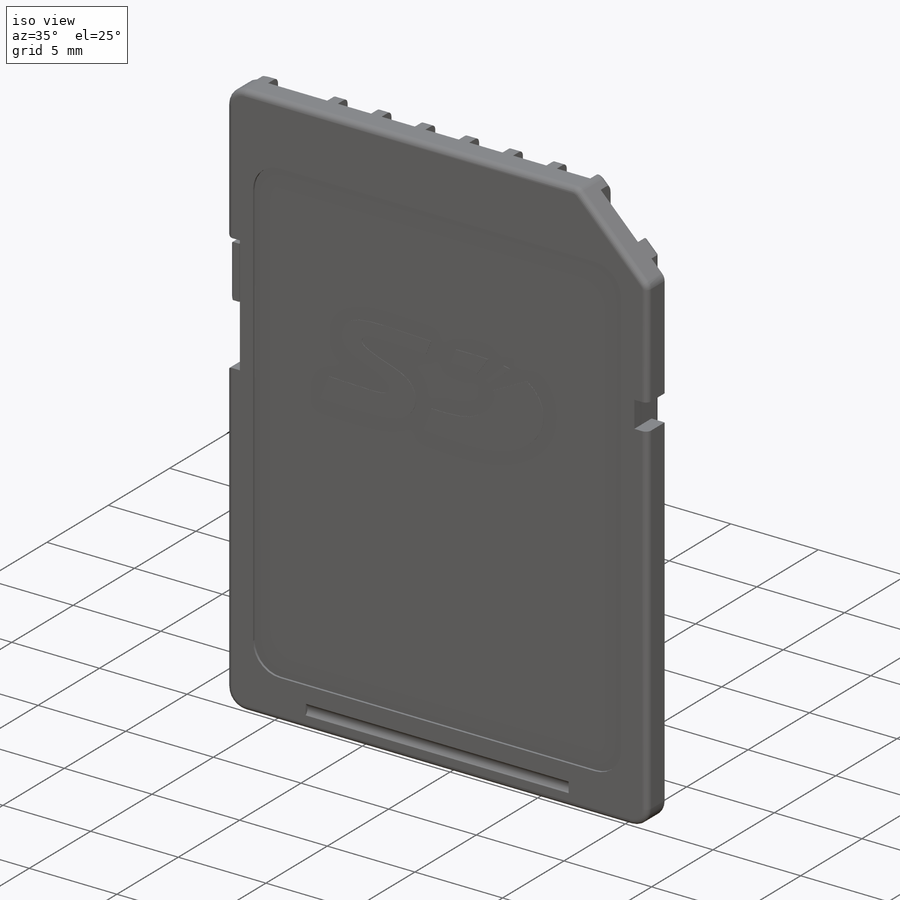
[diagram: iso view]
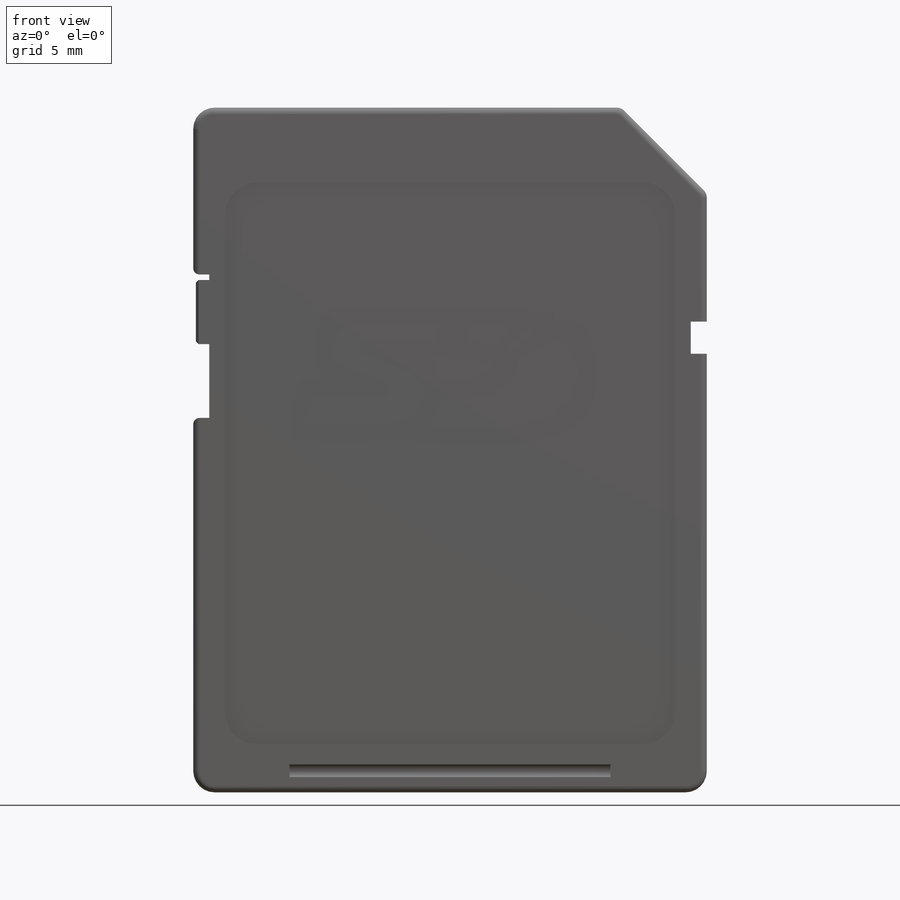
[diagram: front view]
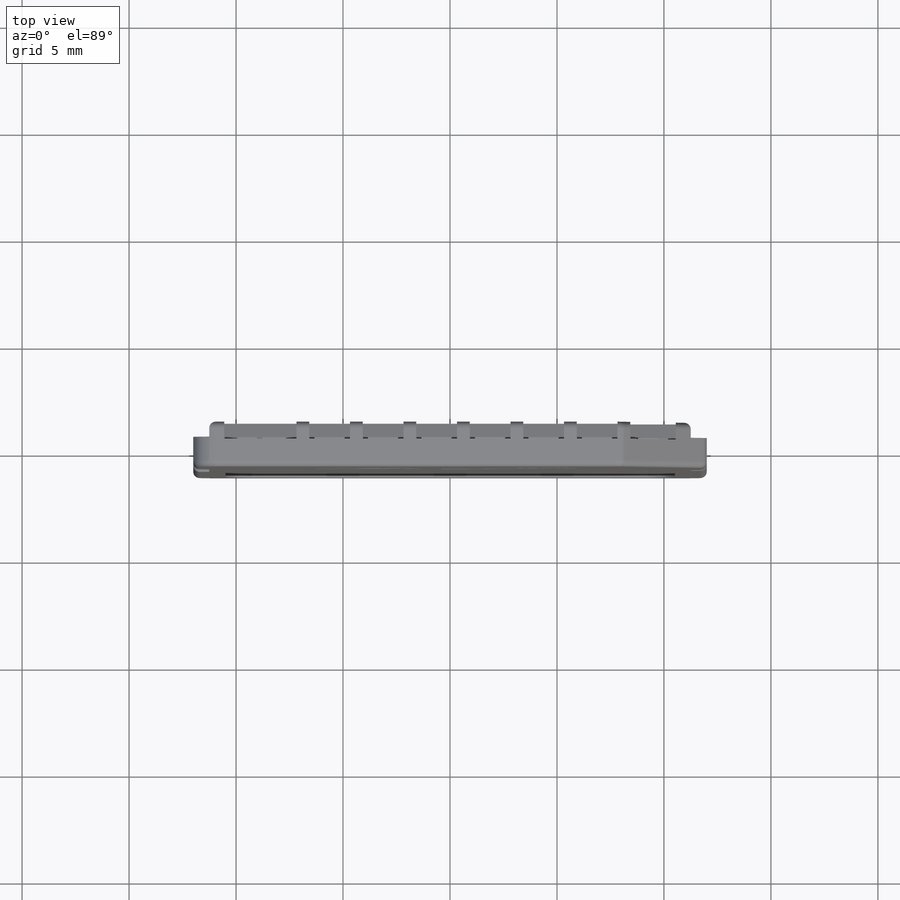
[diagram: top view]
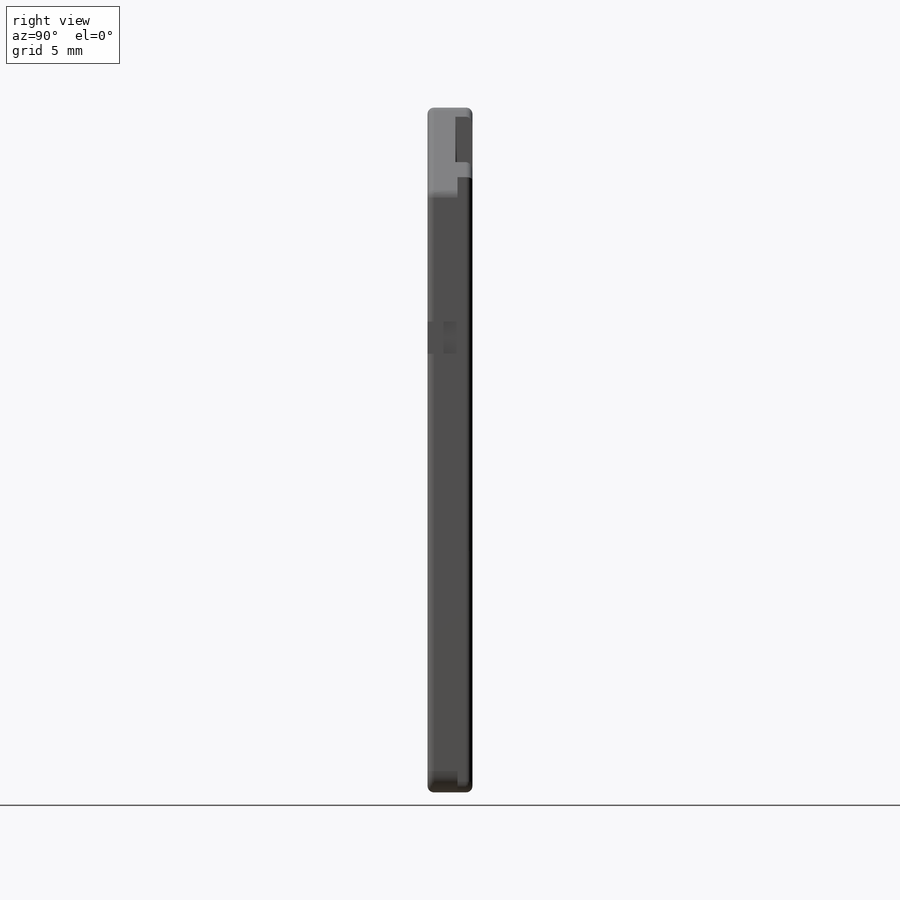
[diagram: right view]
SOLIDWORKS PART (.sldprt)
format: sldprt  version: not decoded by parser v0  size: 607,232 bytes
history: native  units: mm
features: sketch x10, cut_extrude x6, extrude x4, fillet x4, chamfer x2, material x1, plane x1 (+12 scaffold rows collapsed)
feature tree (40):
  scaffold x12  (default folders/planes/origin — collapsed)
  material  "Material <not specified>"
  sketch  "Sketch1"  dims[D1=24.0mm D2=32.0mm]
  extrude  "Main Body"  Depth=2.1mm
  chamfer  "Index Corner"  Distance=4mm Angle=45deg
  sketch  "Sketch2"  dims[D1=1.5mm D2=0.75mm D3=10.0mm D4=6.7mm D5=0.75mm D6=7.8mm]
  cut_extrude  "Lock Tab Cutout"  [1 undecoded]
  sketch  "Sketch3"  dims[D1=22.5mm D2=1.4mm]
  cut_extrude  "Indexing Notch"  [1 undecoded]
  sketch  "Sketch4"  dims[c1.D1=5.95mm c1.D2=2.0mm c1.D3=2.5mm c1.D4=0.7mm c2.D3=0.5mm c2.D5=0.5mm c2.D6=0.7mm c2.D7=7.65mm c2.D8=8.05mm c2.D1=8.125mm c2.D2=2.5mm c3.D3=0.6mm c3.D5=0.6mm c3.D6=0.6mm c3.D8=0.6mm c3.D9=0.6mm c3.D10=0.6mm c3.D11=5.65mm c3.D12=0.6mm c3.D13=0.7mm]
  cut_extrude  "Contact Cutouts"  Depth=0.8mm
  fillet  "Fillet3"  Radius=0.5mm
  fillet  "Fillet1"  Radius=1mm
  fillet  "Fillet4"  Radius=0.3mm
  sketch  "Sketch5"  dims[D5=1.5mm D1=2.25mm D2=1.5mm D3=1.5mm D4=3.5mm]
  cut_extrude  "Label"  Depth=0.127mm
  sketch  "Sketch6"  dims[D1=0.75mm]
  cut_extrude  "Slide Lock Notch"  Depth=1mm
  plane  "Plane1"  Offset=0.254mm
  sketch  "Sketch7"  dims[D1=0.127mm D2=0.127mm D3=0.127mm]
  extrude  "Lock Slide Tab"  Depth=3mm
  chamfer  "Chamfer2"  Distance=0.127mm Angle=45deg
  fillet  "Fillet5"  Radius=0.3mm
  sketch  "Sketch8"  dims[c1.D1=1.4mm c1.D2=~0.783631mm c2.D2=45.0deg c2.D3=0.25mm c2.D4=4.0mm c2.D5=7.0mm c2.D6=1.4mm c2.D7=5.0mm c2.D8=1.6mm c2.D9=0.2mm c2.D10=1.1mm c2.D11=0.9mm c2.D12=0.5mm c2.D13=0.25mm]
  extrude  "Contact Pads"  [1 undecoded]
  sketch  "Sketch9"
  extrude  "SD Logo"  Depth=0.01mm
  sketch  "Sketch10"  dims[D1=0.75mm]
  cut_extrude  "Finger Grab"  Depth=15mm
decode coverage: 22 of 26 modeling features carry decoded parameters
note: ~ marks probable driven/reference dimensions
note: 3 parameter values undecoded
summary: no parameter record found for 3 features
note: suppression state not decoded; provenance and decode notes live in map.json
